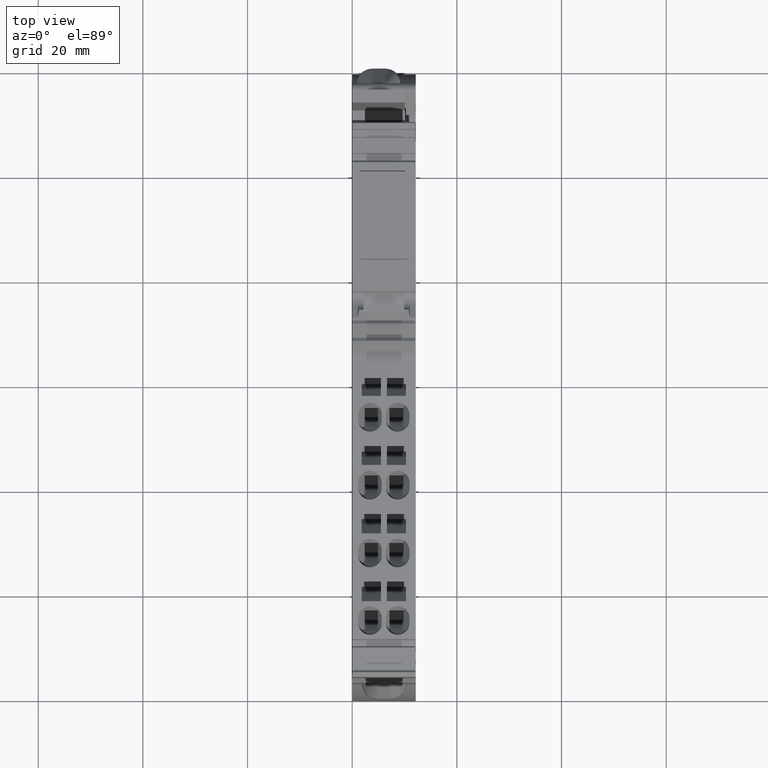
[diagram: clean part render]
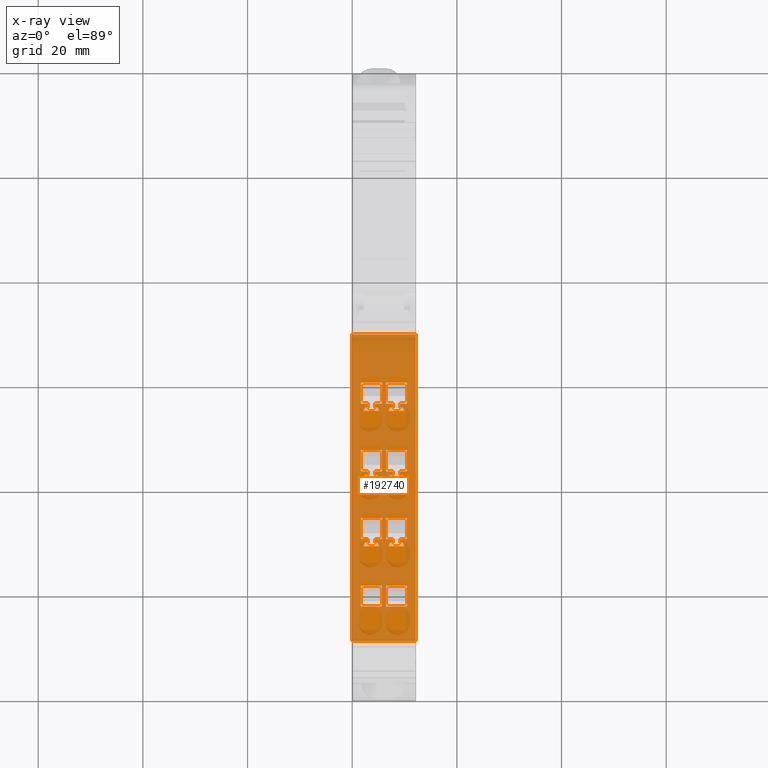
[diagram: x-ray — body ghosted, one internal face saturated and labeled with its STEP entity id]
A machine part, top view, then the same camera in x-ray: the body is ghosted and one INTERNAL B-rep face — a face not visible from any outside direction — is saturated and labeled: STEP entity #192740.
In plain terms, the highlighted planar face has unit normal (0, 0.1305, -0.9914).
Its self-contained STEP definition (entity closure, byte-faithful):
#173920=CARTESIAN_POINT('',(245.956559916687,-18.9076132978659,36.45));
#173930=VERTEX_POINT('',#173920);
#179400=CARTESIAN_POINT('',(187.478620208858,-26.6063801141666,36.45));
#179410=VERTEX_POINT('',#179400);
#179440=CARTESIAN_POINT('',(217.456642799386,-22.6596985673923,36.45));
#179450=DIRECTION('',(0.991444861373811,0.13052619222005,
-1.55470229805303E-45));
#179460=VECTOR('',#179450,1.);
#179470=LINE('',#179440,#179460);
#179480=EDGE_CURVE('',#179410,#173930,#179470,.T.);
#182020=CARTESIAN_POINT('',(245.956559916687,-18.9076132978659,24.3));
#182030=VERTEX_POINT('',#182020);
#182060=CARTESIAN_POINT('',(217.456642799386,-22.6596985673923,24.3));
#182070=DIRECTION('',(0.991444861373811,0.13052619222005,
-1.55470229805303E-45));
#182080=VECTOR('',#182070,1.);
#182090=LINE('',#182060,#182080);
#182100=CARTESIAN_POINT('',(187.478620208858,-26.6063801141666,24.3));
#182110=VERTEX_POINT('',#182100);
#182120=EDGE_CURVE('',#182110,#182030,#182090,.T.);
#185970=CARTESIAN_POINT('',(245.956559916687,-18.9076132978659,24.3));
#185980=DIRECTION('',(0.13052619222005,-0.991444861373811,
1.18091363744997E-44));
#185990=DIRECTION('',(0.991444861373811,0.13052619222005,
-1.55470229805303E-45));
#186000=AXIS2_PLACEMENT_3D('',#185970,#185980,#185990);
#186010=PLANE('',#186000);
#186020=CARTESIAN_POINT('',(217.456642799386,-22.6596985673923,
34.6032718878702));
#186030=DIRECTION('',(0.937065302366578,0.123366987459046,
-0.32663313595824));
#186040=VECTOR('',#186030,1.);
#186050=LINE('',#186020,#186040);
#186060=CARTESIAN_POINT('',(218.49881961482,-22.5224933867127,34.24));
#186070=VERTEX_POINT('',#186060);
#186080=CARTESIAN_POINT('',(219.173002120554,-22.4337355760031,34.005));
#186090=VERTEX_POINT('',#186080);
#186100=EDGE_CURVE('',#186070,#186090,#186050,.T.);
#186110=ORIENTED_EDGE('',*,*,#186100,.F.);
#186120=CARTESIAN_POINT('',(219.173002120554,-22.4337355760031,24.3));
#186130=DIRECTION('',(-1.81498105661143E-19,-2.38946789176702E-20,-1.));
#186140=VECTOR('',#186130,1.);
#186150=LINE('',#186120,#186140);
#186160=CARTESIAN_POINT('',(219.173002120554,-22.4337355760031,33.4));
#186170=VERTEX_POINT('',#186160);
#186180=EDGE_CURVE('',#186090,#186170,#186150,.T.);
#186190=ORIENTED_EDGE('',*,*,#186180,.F.);
#186200=CARTESIAN_POINT('',(217.456642799386,-22.6596985673923,33.4));
#186210=DIRECTION('',(0.991444861373811,0.13052619222005,
-1.55470229805303E-45));
#186220=VECTOR('',#186210,1.);
#186230=LINE('',#186200,#186220);
#186240=CARTESIAN_POINT('',(219.862056299209,-22.3430198724101,33.4));
#186250=VERTEX_POINT('',#186240);
#186260=EDGE_CURVE('',#186170,#186250,#186230,.T.);
#186270=ORIENTED_EDGE('',*,*,#186260,.F.);
#186280=CARTESIAN_POINT('',(219.862056299209,-22.3430198724101,24.3));
#186290=DIRECTION('',(1.81498105661143E-19,2.38946789176702E-20,1.));
#186300=VECTOR('',#186290,1.);
#186310=LINE('',#186280,#186300);
#186320=CARTESIAN_POINT('',(219.862056299209,-22.3430198724101,34.75));
#186330=VERTEX_POINT('',#186320);
#186340=EDGE_CURVE('',#186250,#186330,#186310,.T.);
#186350=ORIENTED_EDGE('',*,*,#186340,.F.);
#186360=CARTESIAN_POINT('',(217.456642799386,-22.6596985673923,34.75));
#186370=DIRECTION('',(0.991444861373811,0.13052619222005,
-1.55470229805303E-45));
#186380=VECTOR('',#186370,1.);
#186390=LINE('',#186360,#186380);
#186400=CARTESIAN_POINT('',(223.888026889554,-21.8129907889778,34.75));
#186410=VERTEX_POINT('',#186400);
#186420=EDGE_CURVE('',#186330,#186410,#186390,.T.);
#186430=ORIENTED_EDGE('',*,*,#186420,.F.);
#186440=CARTESIAN_POINT('',(223.888026889554,-21.8129907889778,24.3));
#186450=DIRECTION('',(-1.81498105661143E-19,-2.38946789176702E-20,-1.));
#186460=VECTOR('',#186450,1.);
#186470=LINE('',#186440,#186460);
#186480=CARTESIAN_POINT('',(223.888026889554,-21.8129907889778,30.75));
#186490=VERTEX_POINT('',#186480);
#186500=EDGE_CURVE('',#186410,#186490,#186470,.T.);
#186510=ORIENTED_EDGE('',*,*,#186500,.F.);
#186520=CARTESIAN_POINT('',(217.456642799386,-22.6596985673923,30.75));
#186530=DIRECTION('',(-0.991444861373811,-0.13052619222005,
1.55470229805303E-45));
#186540=VECTOR('',#186530,1.);
#186550=LINE('',#186520,#186540);
#186560=CARTESIAN_POINT('',(219.862056299209,-22.3430198724101,30.75));
#186570=VERTEX_POINT('',#186560);
#186580=EDGE_CURVE('',#186490,#186570,#186550,.T.);
#186590=ORIENTED_EDGE('',*,*,#186580,.F.);
#186600=CARTESIAN_POINT('',(219.862056299209,-22.3430198724101,24.3));
#186610=DIRECTION('',(1.81498105661143E-19,2.38946789176702E-20,1.));
#186620=VECTOR('',#186610,1.);
#186630=LINE('',#186600,#186620);
#186640=CARTESIAN_POINT('',(219.862056299209,-22.3430198724101,32.1));
#186650=VERTEX_POINT('',#186640);
#186660=EDGE_CURVE('',#186570,#186650,#186630,.T.);
#186670=ORIENTED_EDGE('',*,*,#186660,.F.);
#186680=CARTESIAN_POINT('',(217.456642799386,-22.6596985673923,32.1));
#186690=DIRECTION('',(-0.991444861373811,-0.13052619222005,
1.55470229805303E-45));
#186700=VECTOR('',#186690,1.);
#186710=LINE('',#186680,#186700);
#186720=CARTESIAN_POINT('',(219.173002120554,-22.4337355760031,32.1));
#186730=VERTEX_POINT('',#186720);
#186740=EDGE_CURVE('',#186650,#186730,#186710,.T.);
#186750=ORIENTED_EDGE('',*,*,#186740,.F.);
#186760=CARTESIAN_POINT('',(219.173002120554,-22.4337355760031,24.3));
#186770=DIRECTION('',(-1.81498105661143E-19,-2.38946789176702E-20,-1.));
#186780=VECTOR('',#186770,1.);
#186790=LINE('',#186760,#186780);
#186800=CARTESIAN_POINT('',(219.173002120554,-22.4337355760031,31.495));
#186810=VERTEX_POINT('',#186800);
#186820=EDGE_CURVE('',#186730,#186810,#186790,.T.);
#186830=ORIENTED_EDGE('',*,*,#186820,.F.);
#186840=CARTESIAN_POINT('',(217.456642799386,-22.6596985673923,
30.8967281121298));
#186850=DIRECTION('',(-0.937065302366578,-0.123366987459046,
-0.32663313595824));
#186860=VECTOR('',#186850,1.);
#186870=LINE('',#186840,#186860);
#186880=CARTESIAN_POINT('',(218.49881961482,-22.5224933867127,31.26));
#186890=VERTEX_POINT('',#186880);
#186900=EDGE_CURVE('',#186810,#186890,#186870,.T.);
#186910=ORIENTED_EDGE('',*,*,#186900,.F.);
#186920=CARTESIAN_POINT('',(218.49881961482,-22.5224933867127,24.3));
#186930=DIRECTION('',(1.81498105661143E-19,2.38946789176702E-20,1.));
#186940=VECTOR('',#186930,1.);
#186950=LINE('',#186920,#186940);
#186960=EDGE_CURVE('',#186890,#186070,#186950,.T.);
#186970=ORIENTED_EDGE('',*,*,#186960,.F.);
#186980=EDGE_LOOP('',(#186970,#186910,#186830,#186750,#186670,#186590,
#186510,#186430,#186350,#186270,#186190,#186110));
#186990=FACE_BOUND('',#186980,.T.);
#187000=CARTESIAN_POINT('',(217.456642799386,-22.6596985673923,25.95));
#187010=DIRECTION('',(-0.991444861373811,-0.13052619222005,
1.55470229805303E-45));
#187020=VECTOR('',#187010,1.);
#187030=LINE('',#187000,#187020);
#187040=CARTESIAN_POINT('',(198.110460493835,-25.2066717866991,25.95));
#187050=VERTEX_POINT('',#187040);
#187060=CARTESIAN_POINT('',(194.08448990349,-25.7367008701314,25.95));
#187070=VERTEX_POINT('',#187060);
#187080=EDGE_CURVE('',#187050,#187070,#187030,.T.);
#187090=ORIENTED_EDGE('',*,*,#187080,.F.);
#187100=CARTESIAN_POINT('',(194.08448990349,-25.7367008701314,24.3));
#187110=DIRECTION('',(1.81498105661143E-19,2.38946789176702E-20,1.));
#187120=VECTOR('',#187110,1.);
#187130=LINE('',#187100,#187120);
#187140=CARTESIAN_POINT('',(194.08448990349,-25.7367008701314,29.95));
#187150=VERTEX_POINT('',#187140);
#187160=EDGE_CURVE('',#187070,#187150,#187130,.T.);
#187170=ORIENTED_EDGE('',*,*,#187160,.F.);
#187180=CARTESIAN_POINT('',(217.456642799386,-22.6596985673923,29.95));
#187190=DIRECTION('',(0.991444861373811,0.13052619222005,
-1.55470229805303E-45));
#187200=VECTOR('',#187190,1.);
#187210=LINE('',#187180,#187200);
#187220=CARTESIAN_POINT('',(198.110460493835,-25.2066717866991,29.95));
#187230=VERTEX_POINT('',#187220);
#187240=EDGE_CURVE('',#187150,#187230,#187210,.T.);
#187250=ORIENTED_EDGE('',*,*,#187240,.F.);
#187260=CARTESIAN_POINT('',(198.110460493835,-25.2066717866991,24.3));
#187270=DIRECTION('',(-1.81498105661143E-19,-2.38946789176702E-20,-1.));
#187280=VECTOR('',#187270,1.);
#187290=LINE('',#187260,#187280);
#187300=EDGE_CURVE('',#187230,#187050,#187290,.T.);
#187310=ORIENTED_EDGE('',*,*,#187300,.F.);
#187320=EDGE_LOOP('',(#187310,#187250,#187170,#187090));
#187330=FACE_BOUND('',#187320,.T.);
#187340=CARTESIAN_POINT('',(232.061785318414,-20.7368950771424,24.3));
#187350=DIRECTION('',(-1.81498105661143E-19,-2.38946789176702E-20,-1.));
#187360=VECTOR('',#187350,1.);
#187370=LINE('',#187340,#187360);
#187380=CARTESIAN_POINT('',(232.061785318414,-20.7368950771424,34.005));
#187390=VERTEX_POINT('',#187380);
#187400=CARTESIAN_POINT('',(232.061785318414,-20.7368950771424,33.4));
#187410=VERTEX_POINT('',#187400);
#187420=EDGE_CURVE('',#187390,#187410,#187370,.T.);
#187430=ORIENTED_EDGE('',*,*,#187420,.F.);
#187440=CARTESIAN_POINT('',(217.456642799386,-22.6596985673923,33.4));
#187450=DIRECTION('',(0.991444861373811,0.13052619222005,
-1.55470229805303E-45));
#187460=VECTOR('',#187450,1.);
#187470=LINE('',#187440,#187460);
#187480=CARTESIAN_POINT('',(232.750839497069,-20.6461793735495,33.4));
#187490=VERTEX_POINT('',#187480);
#187500=EDGE_CURVE('',#187410,#187490,#187470,.T.);
#187510=ORIENTED_EDGE('',*,*,#187500,.F.);
#187520=CARTESIAN_POINT('',(232.750839497069,-20.6461793735495,24.3));
#187530=DIRECTION('',(1.81498105661143E-19,2.38946789176702E-20,1.));
#187540=VECTOR('',#187530,1.);
#187550=LINE('',#187520,#187540);
#187560=CARTESIAN_POINT('',(232.750839497069,-20.6461793735495,34.75));
#187570=VERTEX_POINT('',#187560);
#187580=EDGE_CURVE('',#187490,#187570,#187550,.T.);
#187590=ORIENTED_EDGE('',*,*,#187580,.F.);
#187600=CARTESIAN_POINT('',(217.456642799386,-22.6596985673923,34.75));
#187610=DIRECTION('',(0.991444861373811,0.13052619222005,
-1.55470229805303E-45));
#187620=VECTOR('',#187610,1.);
#187630=LINE('',#187600,#187620);
#187640=CARTESIAN_POINT('',(236.776810087414,-20.1161502901171,34.75));
#187650=VERTEX_POINT('',#187640);
#187660=EDGE_CURVE('',#187570,#187650,#187630,.T.);
#187670=ORIENTED_EDGE('',*,*,#187660,.F.);
#187680=CARTESIAN_POINT('',(236.776810087414,-20.1161502901171,24.3));
#187690=DIRECTION('',(-1.81498105661143E-19,-2.38946789176702E-20,-1.));
#187700=VECTOR('',#187690,1.);
#187710=LINE('',#187680,#187700);
#187720=CARTESIAN_POINT('',(236.776810087414,-20.1161502901171,30.75));
#187730=VERTEX_POINT('',#187720);
#187740=EDGE_CURVE('',#187650,#187730,#187710,.T.);
#187750=ORIENTED_EDGE('',*,*,#187740,.F.);
#187760=CARTESIAN_POINT('',(217.456642799386,-22.6596985673923,30.75));
#187770=DIRECTION('',(-0.991444861373811,-0.13052619222005,
1.55470229805303E-45));
#187780=VECTOR('',#187770,1.);
#187790=LINE('',#187760,#187780);
#187800=CARTESIAN_POINT('',(232.750839497069,-20.6461793735495,30.75));
#187810=VERTEX_POINT('',#187800);
#187820=EDGE_CURVE('',#187730,#187810,#187790,.T.);
#187830=ORIENTED_EDGE('',*,*,#187820,.F.);
#187840=CARTESIAN_POINT('',(232.750839497069,-20.6461793735495,24.3));
#187850=DIRECTION('',(1.81498105661143E-19,2.38946789176702E-20,1.));
#187860=VECTOR('',#187850,1.);
#187870=LINE('',#187840,#187860);
#187880=CARTESIAN_POINT('',(232.750839497069,-20.6461793735495,32.1));
#187890=VERTEX_POINT('',#187880);
#187900=EDGE_CURVE('',#187810,#187890,#187870,.T.);
#187910=ORIENTED_EDGE('',*,*,#187900,.F.);
#187920=CARTESIAN_POINT('',(217.456642799386,-22.6596985673923,32.1));
#187930=DIRECTION('',(-0.991444861373811,-0.13052619222005,
1.55470229805303E-45));
#187940=VECTOR('',#187930,1.);
#187950=LINE('',#187920,#187940);
#187960=CARTESIAN_POINT('',(232.061785318414,-20.7368950771424,32.1));
#187970=VERTEX_POINT('',#187960);
#187980=EDGE_CURVE('',#187890,#187970,#187950,.T.);
#187990=ORIENTED_EDGE('',*,*,#187980,.F.);
#188000=CARTESIAN_POINT('',(232.061785318414,-20.7368950771424,24.3));
#188010=DIRECTION('',(-1.81498105661143E-19,-2.38946789176702E-20,-1.));
#188020=VECTOR('',#188010,1.);
#188030=LINE('',#188000,#188020);
#188040=CARTESIAN_POINT('',(232.061785318414,-20.7368950771424,31.495));
#188050=VERTEX_POINT('',#188040);
#188060=EDGE_CURVE('',#187970,#188050,#188030,.T.);
#188070=ORIENTED_EDGE('',*,*,#188060,.F.);
#188080=CARTESIAN_POINT('',(217.456642799386,-22.6596985673923,
26.4040810533063));
#188090=DIRECTION('',(-0.937065302366578,-0.123366987459046,
-0.32663313595824));
#188100=VECTOR('',#188090,1.);
#188110=LINE('',#188080,#188100);
#188120=CARTESIAN_POINT('',(231.38760281268,-20.8256528878521,31.26));
#188130=VERTEX_POINT('',#188120);
#188140=EDGE_CURVE('',#188050,#188130,#188110,.T.);
#188150=ORIENTED_EDGE('',*,*,#188140,.F.);
#188160=CARTESIAN_POINT('',(231.38760281268,-20.8256528878521,24.3));
#188170=DIRECTION('',(1.81498105661143E-19,2.38946789176702E-20,1.));
#188180=VECTOR('',#188170,1.);
#188190=LINE('',#188160,#188180);
#188200=CARTESIAN_POINT('',(231.38760281268,-20.8256528878521,34.24));
#188210=VERTEX_POINT('',#188200);
#188220=EDGE_CURVE('',#188130,#188210,#188190,.T.);
#188230=ORIENTED_EDGE('',*,*,#188220,.F.);
#188240=CARTESIAN_POINT('',(217.456642799386,-22.6596985673923,
39.0959189466937));
#188250=DIRECTION('',(0.937065302366578,0.123366987459046,
-0.32663313595824));
#188260=VECTOR('',#188250,1.);
#188270=LINE('',#188240,#188260);
#188280=EDGE_CURVE('',#188210,#187390,#188270,.T.);
#188290=ORIENTED_EDGE('',*,*,#188280,.F.);
#188300=EDGE_LOOP('',(#188290,#188230,#188150,#188070,#187990,#187910,
#187830,#187750,#187670,#187590,#187510,#187430));
#188310=FACE_BOUND('',#188300,.T.);
#188320=CARTESIAN_POINT('',(198.110460493835,-25.2066717866991,24.3));
#188330=DIRECTION('',(-1.81498105661143E-19,-2.38946789176702E-20,-1.));
#188340=VECTOR('',#188330,1.);
#188350=LINE('',#188320,#188340);
#188360=CARTESIAN_POINT('',(198.110460493835,-25.2066717866991,34.75));
#188370=VERTEX_POINT('',#188360);
#188380=CARTESIAN_POINT('',(198.110460493835,-25.2066717866991,30.75));
#188390=VERTEX_POINT('',#188380);
#188400=EDGE_CURVE('',#188370,#188390,#188350,.T.);
#188410=ORIENTED_EDGE('',*,*,#188400,.F.);
#188420=CARTESIAN_POINT('',(217.456642799386,-22.6596985673923,30.75));
#188430=DIRECTION('',(-0.991444861373811,-0.13052619222005,
1.55470229805303E-45));
#188440=VECTOR('',#188430,1.);
#188450=LINE('',#188420,#188440);
#188460=CARTESIAN_POINT('',(194.08448990349,-25.7367008701314,30.75));
#188470=VERTEX_POINT('',#188460);
#188480=EDGE_CURVE('',#188390,#188470,#188450,.T.);
#188490=ORIENTED_EDGE('',*,*,#188480,.F.);
#188500=CARTESIAN_POINT('',(194.08448990349,-25.7367008701314,24.3));
#188510=DIRECTION('',(1.81498105661143E-19,2.38946789176702E-20,1.));
#188520=VECTOR('',#188510,1.);
#188530=LINE('',#188500,#188520);
#188540=CARTESIAN_POINT('',(194.08448990349,-25.7367008701314,34.75));
#188550=VERTEX_POINT('',#188540);
#188560=EDGE_CURVE('',#188470,#188550,#188530,.T.);
#188570=ORIENTED_EDGE('',*,*,#188560,.F.);
#188580=CARTESIAN_POINT('',(217.456642799386,-22.6596985673923,34.75));
#188590=DIRECTION('',(0.991444861373811,0.13052619222005,
-1.55470229805303E-45));
#188600=VECTOR('',#188590,1.);
#188610=LINE('',#188580,#188600);
#188620=EDGE_CURVE('',#188550,#188370,#188610,.T.);
#188630=ORIENTED_EDGE('',*,*,#188620,.F.);
#188640=EDGE_LOOP('',(#188630,#188570,#188490,#188410));
#188650=FACE_BOUND('',#188640,.T.);
#188660=CARTESIAN_POINT('',(217.456642799386,-22.6596985673923,29.95));
#188670=DIRECTION('',(0.991444861373811,0.13052619222005,
-1.55470229805303E-45));
#188680=VECTOR('',#188670,1.);
#188690=LINE('',#188660,#188680);
#188700=CARTESIAN_POINT('',(232.750839497069,-20.6461793735495,29.95));
#188710=VERTEX_POINT('',#188700);
#188720=CARTESIAN_POINT('',(236.776810087414,-20.1161502901171,29.95));
#188730=VERTEX_POINT('',#188720);
#188740=EDGE_CURVE('',#188710,#188730,#188690,.T.);
#188750=ORIENTED_EDGE('',*,*,#188740,.F.);
#188760=CARTESIAN_POINT('',(236.776810087414,-20.1161502901171,24.3));
#188770=DIRECTION('',(-1.81498105661143E-19,-2.38946789176702E-20,-1.));
#188780=VECTOR('',#188770,1.);
#188790=LINE('',#188760,#188780);
#188800=CARTESIAN_POINT('',(236.776810087414,-20.1161502901171,25.95));
#188810=VERTEX_POINT('',#188800);
#188820=EDGE_CURVE('',#188730,#188810,#188790,.T.);
#188830=ORIENTED_EDGE('',*,*,#188820,.F.);
#188840=CARTESIAN_POINT('',(217.456642799386,-22.6596985673923,25.95));
#188850=DIRECTION('',(-0.991444861373811,-0.13052619222005,
1.55470229805303E-45));
#188860=VECTOR('',#188850,1.);
#188870=LINE('',#188840,#188860);
#188880=CARTESIAN_POINT('',(232.750839497069,-20.6461793735495,25.95));
#188890=VERTEX_POINT('',#188880);
#188900=EDGE_CURVE('',#188810,#188890,#188870,.T.);
#188910=ORIENTED_EDGE('',*,*,#188900,.F.);
#188920=CARTESIAN_POINT('',(232.750839497069,-20.6461793735495,24.3));
#188930=DIRECTION('',(1.81498105661143E-19,2.38946789176702E-20,1.));
#188940=VECTOR('',#188930,1.);
#188950=LINE('',#188920,#188940);
#188960=CARTESIAN_POINT('',(232.750839497069,-20.6461793735495,27.3));
#188970=VERTEX_POINT('',#188960);
#188980=EDGE_CURVE('',#188890,#188970,#188950,.T.);
#188990=ORIENTED_EDGE('',*,*,#188980,.F.);
#189000=CARTESIAN_POINT('',(217.456642799386,-22.6596985673923,27.3));
#189010=DIRECTION('',(-0.991444861373811,-0.13052619222005,
1.55470229805303E-45));
#189020=VECTOR('',#189010,1.);
#189030=LINE('',#189000,#189020);
#189040=CARTESIAN_POINT('',(232.061785318414,-20.7368950771424,27.3));
#189050=VERTEX_POINT('',#189040);
#189060=EDGE_CURVE('',#188970,#189050,#189030,.T.);
#189070=ORIENTED_EDGE('',*,*,#189060,.F.);
#189080=CARTESIAN_POINT('',(232.061785318414,-20.7368950771424,24.3));
#189090=DIRECTION('',(-1.81498105661143E-19,-2.38946789176702E-20,-1.));
#189100=VECTOR('',#189090,1.);
#189110=LINE('',#189080,#189100);
#189120=CARTESIAN_POINT('',(232.061785318414,-20.7368950771424,26.695));
#189130=VERTEX_POINT('',#189120);
#189140=EDGE_CURVE('',#189050,#189130,#189110,.T.);
#189150=ORIENTED_EDGE('',*,*,#189140,.F.);
#189160=CARTESIAN_POINT('',(217.456642799386,-22.6596985673923,
21.6040810533063));
#189170=DIRECTION('',(-0.937065302366578,-0.123366987459046,
-0.32663313595824));
#189180=VECTOR('',#189170,1.);
#189190=LINE('',#189160,#189180);
#189200=CARTESIAN_POINT('',(231.38760281268,-20.825652887852,26.46));
#189210=VERTEX_POINT('',#189200);
#189220=EDGE_CURVE('',#189130,#189210,#189190,.T.);
#189230=ORIENTED_EDGE('',*,*,#189220,.F.);
#189240=CARTESIAN_POINT('',(231.38760281268,-20.825652887852,24.3));
#189250=DIRECTION('',(1.81498105661143E-19,2.38946789176702E-20,1.));
#189260=VECTOR('',#189250,1.);
#189270=LINE('',#189240,#189260);
#189280=CARTESIAN_POINT('',(231.38760281268,-20.825652887852,29.44));
#189290=VERTEX_POINT('',#189280);
#189300=EDGE_CURVE('',#189210,#189290,#189270,.T.);
#189310=ORIENTED_EDGE('',*,*,#189300,.F.);
#189320=CARTESIAN_POINT('',(217.456642799386,-22.6596985673923,
34.2959189466937));
#189330=DIRECTION('',(0.937065302366578,0.123366987459046,
-0.32663313595824));
#189340=VECTOR('',#189330,1.);
#189350=LINE('',#189320,#189340);
#189360=CARTESIAN_POINT('',(232.061785318414,-20.7368950771424,29.205));
#189370=VERTEX_POINT('',#189360);
#189380=EDGE_CURVE('',#189290,#189370,#189350,.T.);
#189390=ORIENTED_EDGE('',*,*,#189380,.F.);
#189400=CARTESIAN_POINT('',(232.061785318414,-20.7368950771424,24.3));
#189410=DIRECTION('',(-1.81498105661143E-19,-2.38946789176702E-20,-1.));
#189420=VECTOR('',#189410,1.);
#189430=LINE('',#189400,#189420);
#189440=CARTESIAN_POINT('',(232.061785318414,-20.7368950771424,28.6));
#189450=VERTEX_POINT('',#189440);
#189460=EDGE_CURVE('',#189370,#189450,#189430,.T.);
#189470=ORIENTED_EDGE('',*,*,#189460,.F.);
#189480=CARTESIAN_POINT('',(217.456642799386,-22.6596985673923,28.6));
#189490=DIRECTION('',(0.991444861373811,0.13052619222005,
-1.55470229805303E-45));
#189500=VECTOR('',#189490,1.);
#189510=LINE('',#189480,#189500);
#189520=CARTESIAN_POINT('',(232.750839497069,-20.6461793735495,28.6));
#189530=VERTEX_POINT('',#189520);
#189540=EDGE_CURVE('',#189450,#189530,#189510,.T.);
#189550=ORIENTED_EDGE('',*,*,#189540,.F.);
#189560=CARTESIAN_POINT('',(232.750839497069,-20.6461793735495,24.3));
#189570=DIRECTION('',(1.81498105661143E-19,2.38946789176702E-20,1.));
#189580=VECTOR('',#189570,1.);
#189590=LINE('',#189560,#189580);
#189600=EDGE_CURVE('',#189530,#188710,#189590,.T.);
#189610=ORIENTED_EDGE('',*,*,#189600,.F.);
#189620=EDGE_LOOP('',(#189610,#189550,#189470,#189390,#189310,#189230,
#189150,#189070,#188990,#188910,#188830,#188750));
#189630=FACE_BOUND('',#189620,.T.);
#189640=CARTESIAN_POINT('',(219.862056299209,-22.3430198724101,24.3));
#189650=DIRECTION('',(1.81498105661143E-19,2.38946789176702E-20,1.));
#189660=VECTOR('',#189650,1.);
#189670=LINE('',#189640,#189660);
#189680=CARTESIAN_POINT('',(219.862056299209,-22.3430198724101,28.6));
#189690=VERTEX_POINT('',#189680);
#189700=CARTESIAN_POINT('',(219.862056299209,-22.3430198724101,29.95));
#189710=VERTEX_POINT('',#189700);
#189720=EDGE_CURVE('',#189690,#189710,#189670,.T.);
#189730=ORIENTED_EDGE('',*,*,#189720,.F.);
#189740=CARTESIAN_POINT('',(217.456642799386,-22.6596985673923,29.95));
#189750=DIRECTION('',(0.991444861373811,0.13052619222005,
-1.55470229805303E-45));
#189760=VECTOR('',#189750,1.);
#189770=LINE('',#189740,#189760);
#189780=CARTESIAN_POINT('',(223.888026889554,-21.8129907889778,29.95));
#189790=VERTEX_POINT('',#189780);
#189800=EDGE_CURVE('',#189710,#189790,#189770,.T.);
#189810=ORIENTED_EDGE('',*,*,#189800,.F.);
#189820=CARTESIAN_POINT('',(223.888026889554,-21.8129907889778,24.3));
#189830=DIRECTION('',(-1.81498105661143E-19,-2.38946789176702E-20,-1.));
#189840=VECTOR('',#189830,1.);
#189850=LINE('',#189820,#189840);
#189860=CARTESIAN_POINT('',(223.888026889554,-21.8129907889778,25.95));
#189870=VERTEX_POINT('',#189860);
#189880=EDGE_CURVE('',#189790,#189870,#189850,.T.);
#189890=ORIENTED_EDGE('',*,*,#189880,.F.);
#189900=CARTESIAN_POINT('',(217.456642799386,-22.6596985673923,25.95));
#189910=DIRECTION('',(-0.991444861373811,-0.13052619222005,
1.55470229805303E-45));
#189920=VECTOR('',#189910,1.);
#189930=LINE('',#189900,#189920);
#189940=CARTESIAN_POINT('',(219.862056299209,-22.3430198724101,25.95));
#189950=VERTEX_POINT('',#189940);
#189960=EDGE_CURVE('',#189870,#189950,#189930,.T.);
#189970=ORIENTED_EDGE('',*,*,#189960,.F.);
#189980=CARTESIAN_POINT('',(219.862056299209,-22.3430198724101,24.3));
#189990=DIRECTION('',(1.81498105661143E-19,2.38946789176702E-20,1.));
#190000=VECTOR('',#189990,1.);
#190010=LINE('',#189980,#190000);
#190020=CARTESIAN_POINT('',(219.862056299209,-22.3430198724101,27.3));
#190030=VERTEX_POINT('',#190020);
#190040=EDGE_CURVE('',#189950,#190030,#190010,.T.);
#190050=ORIENTED_EDGE('',*,*,#190040,.F.);
#190060=CARTESIAN_POINT('',(217.456642799386,-22.6596985673923,27.3));
#190070=DIRECTION('',(-0.991444861373811,-0.13052619222005,
1.55470229805303E-45));
#190080=VECTOR('',#190070,1.);
#190090=LINE('',#190060,#190080);
#190100=CARTESIAN_POINT('',(219.173002120554,-22.4337355760031,27.3));
#190110=VERTEX_POINT('',#190100);
#190120=EDGE_CURVE('',#190030,#190110,#190090,.T.);
#190130=ORIENTED_EDGE('',*,*,#190120,.F.);
#190140=CARTESIAN_POINT('',(219.173002120554,-22.4337355760031,24.3));
#190150=DIRECTION('',(-1.81498105661143E-19,-2.38946789176702E-20,-1.));
#190160=VECTOR('',#190150,1.);
#190170=LINE('',#190140,#190160);
#190180=CARTESIAN_POINT('',(219.173002120554,-22.4337355760031,26.695));
#190190=VERTEX_POINT('',#190180);
#190200=EDGE_CURVE('',#190110,#190190,#190170,.T.);
#190210=ORIENTED_EDGE('',*,*,#190200,.F.);
#190220=CARTESIAN_POINT('',(217.456642799386,-22.6596985673923,
26.0967281121298));
#190230=DIRECTION('',(-0.937065302366578,-0.123366987459046,
-0.32663313595824));
#190240=VECTOR('',#190230,1.);
#190250=LINE('',#190220,#190240);
#190260=CARTESIAN_POINT('',(218.49881961482,-22.5224933867127,26.46));
#190270=VERTEX_POINT('',#190260);
#190280=EDGE_CURVE('',#190190,#190270,#190250,.T.);
#190290=ORIENTED_EDGE('',*,*,#190280,.F.);
#190300=CARTESIAN_POINT('',(218.49881961482,-22.5224933867127,24.3));
#190310=DIRECTION('',(1.81498105661143E-19,2.38946789176702E-20,1.));
#190320=VECTOR('',#190310,1.);
#190330=LINE('',#190300,#190320);
#190340=CARTESIAN_POINT('',(218.49881961482,-22.5224933867127,29.44));
#190350=VERTEX_POINT('',#190340);
#190360=EDGE_CURVE('',#190270,#190350,#190330,.T.);
#190370=ORIENTED_EDGE('',*,*,#190360,.F.);
#190380=CARTESIAN_POINT('',(217.456642799386,-22.6596985673923,
29.8032718878702));
#190390=DIRECTION('',(0.937065302366578,0.123366987459046,
-0.32663313595824));
#190400=VECTOR('',#190390,1.);
#190410=LINE('',#190380,#190400);
#190420=CARTESIAN_POINT('',(219.173002120554,-22.4337355760031,29.205));
#190430=VERTEX_POINT('',#190420);
#190440=EDGE_CURVE('',#190350,#190430,#190410,.T.);
#190450=ORIENTED_EDGE('',*,*,#190440,.F.);
#190460=CARTESIAN_POINT('',(219.173002120554,-22.4337355760031,24.3));
#190470=DIRECTION('',(-1.81498105661143E-19,-2.38946789176702E-20,-1.));
#190480=VECTOR('',#190470,1.);
#190490=LINE('',#190460,#190480);
#190500=CARTESIAN_POINT('',(219.173002120554,-22.4337355760031,28.6));
#190510=VERTEX_POINT('',#190500);
#190520=EDGE_CURVE('',#190430,#190510,#190490,.T.);
#190530=ORIENTED_EDGE('',*,*,#190520,.F.);
#190540=CARTESIAN_POINT('',(217.456642799386,-22.6596985673923,28.6));
#190550=DIRECTION('',(0.991444861373811,0.13052619222005,
-1.55470229805303E-45));
#190560=VECTOR('',#190550,1.);
#190570=LINE('',#190540,#190560);
#190580=EDGE_CURVE('',#190510,#189690,#190570,.T.);
#190590=ORIENTED_EDGE('',*,*,#190580,.F.);
#190600=EDGE_LOOP('',(#190590,#190530,#190450,#190370,#190290,#190210,
#190130,#190050,#189970,#189890,#189810,#189730));
#190610=FACE_BOUND('',#190600,.T.);
#190620=CARTESIAN_POINT('',(217.456642799386,-22.6596985673923,
30.5893751709533));
#190630=DIRECTION('',(-0.937065302366578,-0.123366987459046,
-0.32663313595824));
#190640=VECTOR('',#190630,1.);
#190650=LINE('',#190620,#190640);
#190660=CARTESIAN_POINT('',(206.284218922695,-24.1305760748637,26.695));
#190670=VERTEX_POINT('',#190660);
#190680=CARTESIAN_POINT('',(205.610036416961,-24.2193338855733,26.46));
#190690=VERTEX_POINT('',#190680);
#190700=EDGE_CURVE('',#190670,#190690,#190650,.T.);
#190710=ORIENTED_EDGE('',*,*,#190700,.F.);
#190720=CARTESIAN_POINT('',(205.610036416961,-24.2193338855733,24.3));
#190730=DIRECTION('',(1.81498105661143E-19,2.38946789176702E-20,1.));
#190740=VECTOR('',#190730,1.);
#190750=LINE('',#190720,#190740);
#190760=CARTESIAN_POINT('',(205.610036416961,-24.2193338855733,29.44));
#190770=VERTEX_POINT('',#190760);
#190780=EDGE_CURVE('',#190690,#190770,#190750,.T.);
#190790=ORIENTED_EDGE('',*,*,#190780,.F.);
#190800=CARTESIAN_POINT('',(217.456642799386,-22.6596985673923,
25.3106248290467));
#190810=DIRECTION('',(0.937065302366578,0.123366987459046,
-0.32663313595824));
#190820=VECTOR('',#190810,1.);
#190830=LINE('',#190800,#190820);
#190840=CARTESIAN_POINT('',(206.284218922695,-24.1305760748637,29.205));
#190850=VERTEX_POINT('',#190840);
#190860=EDGE_CURVE('',#190770,#190850,#190830,.T.);
#190870=ORIENTED_EDGE('',*,*,#190860,.F.);
#190880=CARTESIAN_POINT('',(206.284218922695,-24.1305760748637,24.3));
#190890=DIRECTION('',(-1.81498105661143E-19,-2.38946789176702E-20,-1.));
#190900=VECTOR('',#190890,1.);
#190910=LINE('',#190880,#190900);
#190920=CARTESIAN_POINT('',(206.284218922695,-24.1305760748637,28.6));
#190930=VERTEX_POINT('',#190920);
#190940=EDGE_CURVE('',#190850,#190930,#190910,.T.);
#190950=ORIENTED_EDGE('',*,*,#190940,.F.);
#190960=CARTESIAN_POINT('',(217.456642799386,-22.6596985673923,28.6));
#190970=DIRECTION('',(0.991444861373811,0.13052619222005,
-1.55470229805303E-45));
#190980=VECTOR('',#190970,1.);
#190990=LINE('',#190960,#190980);
#191000=CARTESIAN_POINT('',(206.97327310135,-24.0398603712708,28.6));
#191010=VERTEX_POINT('',#191000);
#191020=EDGE_CURVE('',#190930,#191010,#190990,.T.);
#191030=ORIENTED_EDGE('',*,*,#191020,.F.);
#191040=CARTESIAN_POINT('',(206.97327310135,-24.0398603712708,24.3));
#191050=DIRECTION('',(1.81498105661143E-19,2.38946789176702E-20,1.));
#191060=VECTOR('',#191050,1.);
#191070=LINE('',#191040,#191060);
#191080=CARTESIAN_POINT('',(206.97327310135,-24.0398603712708,29.95));
#191090=VERTEX_POINT('',#191080);
#191100=EDGE_CURVE('',#191010,#191090,#191070,.T.);
#191110=ORIENTED_EDGE('',*,*,#191100,.F.);
#191120=CARTESIAN_POINT('',(217.456642799386,-22.6596985673923,29.95));
#191130=DIRECTION('',(0.991444861373811,0.13052619222005,
-1.55470229805303E-45));
#191140=VECTOR('',#191130,1.);
#191150=LINE('',#191120,#191140);
#191160=CARTESIAN_POINT('',(210.999243691695,-23.5098312878385,29.95));
#191170=VERTEX_POINT('',#191160);
#191180=EDGE_CURVE('',#191090,#191170,#191150,.T.);
#191190=ORIENTED_EDGE('',*,*,#191180,.F.);
#191200=CARTESIAN_POINT('',(210.999243691695,-23.5098312878385,24.3));
#191210=DIRECTION('',(-1.81498105661143E-19,-2.38946789176702E-20,-1.));
#191220=VECTOR('',#191210,1.);
#191230=LINE('',#191200,#191220);
#191240=CARTESIAN_POINT('',(210.999243691695,-23.5098312878385,25.95));
#191250=VERTEX_POINT('',#191240);
#191260=EDGE_CURVE('',#191170,#191250,#191230,.T.);
#191270=ORIENTED_EDGE('',*,*,#191260,.F.);
#191280=CARTESIAN_POINT('',(217.456642799386,-22.6596985673923,25.95));
#191290=DIRECTION('',(-0.991444861373811,-0.13052619222005,
1.55470229805303E-45));
#191300=VECTOR('',#191290,1.);
#191310=LINE('',#191280,#191300);
#191320=CARTESIAN_POINT('',(206.97327310135,-24.0398603712708,25.95));
#191330=VERTEX_POINT('',#191320);
#191340=EDGE_CURVE('',#191250,#191330,#191310,.T.);
#191350=ORIENTED_EDGE('',*,*,#191340,.F.);
#191360=CARTESIAN_POINT('',(206.97327310135,-24.0398603712708,24.3));
#191370=DIRECTION('',(1.81498105661143E-19,2.38946789176702E-20,1.));
#191380=VECTOR('',#191370,1.);
#191390=LINE('',#191360,#191380);
#191400=CARTESIAN_POINT('',(206.97327310135,-24.0398603712708,27.3));
#191410=VERTEX_POINT('',#191400);
#191420=EDGE_CURVE('',#191330,#191410,#191390,.T.);
#191430=ORIENTED_EDGE('',*,*,#191420,.F.);
#191440=CARTESIAN_POINT('',(217.456642799386,-22.6596985673923,27.3));
#191450=DIRECTION('',(-0.991444861373811,-0.13052619222005,
1.55470229805303E-45));
#191460=VECTOR('',#191450,1.);
#191470=LINE('',#191440,#191460);
#191480=CARTESIAN_POINT('',(206.284218922695,-24.1305760748637,27.3));
#191490=VERTEX_POINT('',#191480);
#191500=EDGE_CURVE('',#191410,#191490,#191470,.T.);
#191510=ORIENTED_EDGE('',*,*,#191500,.F.);
#191520=CARTESIAN_POINT('',(206.284218922695,-24.1305760748637,24.3));
#191530=DIRECTION('',(-1.81498105661143E-19,-2.38946789176702E-20,-1.));
#191540=VECTOR('',#191530,1.);
#191550=LINE('',#191520,#191540);
#191560=EDGE_CURVE('',#191490,#190670,#191550,.T.);
#191570=ORIENTED_EDGE('',*,*,#191560,.F.);
#191580=EDGE_LOOP('',(#191570,#191510,#191430,#191350,#191270,#191190,
#191110,#191030,#190950,#190870,#190790,#190710));
#191590=FACE_BOUND('',#191580,.T.);
#191600=CARTESIAN_POINT('',(217.456642799386,-22.6596985673923,34.75));
#191610=DIRECTION('',(0.991444861373811,0.13052619222005,
-1.55470229805303E-45));
#191620=VECTOR('',#191610,1.);
#191630=LINE('',#191600,#191620);
#191640=CARTESIAN_POINT('',(206.97327310135,-24.0398603712708,34.75));
#191650=VERTEX_POINT('',#191640);
#191660=CARTESIAN_POINT('',(210.999243691695,-23.5098312878385,34.75));
#191670=VERTEX_POINT('',#191660);
#191680=EDGE_CURVE('',#191650,#191670,#191630,.T.);
#191690=ORIENTED_EDGE('',*,*,#191680,.F.);
#191700=CARTESIAN_POINT('',(210.999243691695,-23.5098312878385,24.3));
#191710=DIRECTION('',(-1.81498105661143E-19,-2.38946789176702E-20,-1.));
#191720=VECTOR('',#191710,1.);
#191730=LINE('',#191700,#191720);
#191740=CARTESIAN_POINT('',(210.999243691695,-23.5098312878385,30.75));
#191750=VERTEX_POINT('',#191740);
#191760=EDGE_CURVE('',#191670,#191750,#191730,.T.);
#191770=ORIENTED_EDGE('',*,*,#191760,.F.);
#191780=CARTESIAN_POINT('',(217.456642799386,-22.6596985673923,30.75));
#191790=DIRECTION('',(-0.991444861373811,-0.13052619222005,
1.55470229805303E-45));
#191800=VECTOR('',#191790,1.);
#191810=LINE('',#191780,#191800);
#191820=CARTESIAN_POINT('',(206.97327310135,-24.0398603712708,30.75));
#191830=VERTEX_POINT('',#191820);
#191840=EDGE_CURVE('',#191750,#191830,#191810,.T.);
#191850=ORIENTED_EDGE('',*,*,#191840,.F.);
#191860=CARTESIAN_POINT('',(206.97327310135,-24.0398603712708,24.3));
#191870=DIRECTION('',(1.81498105661143E-19,2.38946789176702E-20,1.));
#191880=VECTOR('',#191870,1.);
#191890=LINE('',#191860,#191880);
#191900=CARTESIAN_POINT('',(206.97327310135,-24.0398603712708,32.1));
#191910=VERTEX_POINT('',#191900);
#191920=EDGE_CURVE('',#191830,#191910,#191890,.T.);
#191930=ORIENTED_EDGE('',*,*,#191920,.F.);
#191940=CARTESIAN_POINT('',(217.456642799386,-22.6596985673923,32.1));
#191950=DIRECTION('',(-0.991444861373811,-0.13052619222005,
1.55470229805303E-45));
#191960=VECTOR('',#191950,1.);
#191970=LINE('',#191940,#191960);
#191980=CARTESIAN_POINT('',(206.284218922695,-24.1305760748637,32.1));
#191990=VERTEX_POINT('',#191980);
#192000=EDGE_CURVE('',#191910,#191990,#191970,.T.);
#192010=ORIENTED_EDGE('',*,*,#192000,.F.);
#192020=CARTESIAN_POINT('',(206.284218922695,-24.1305760748637,24.3));
#192030=DIRECTION('',(-1.81498105661143E-19,-2.38946789176702E-20,-1.));
#192040=VECTOR('',#192030,1.);
#192050=LINE('',#192020,#192040);
#192060=CARTESIAN_POINT('',(206.284218922695,-24.1305760748637,31.495));
#192070=VERTEX_POINT('',#192060);
#192080=EDGE_CURVE('',#191990,#192070,#192050,.T.);
#192090=ORIENTED_EDGE('',*,*,#192080,.F.);
#192100=CARTESIAN_POINT('',(217.456642799386,-22.6596985673923,
35.3893751709533));
#192110=DIRECTION('',(-0.937065302366578,-0.123366987459046,
-0.32663313595824));
#192120=VECTOR('',#192110,1.);
#192130=LINE('',#192100,#192120);
#192140=CARTESIAN_POINT('',(205.610036416961,-24.2193338855734,31.26));
#192150=VERTEX_POINT('',#192140);
#192160=EDGE_CURVE('',#192070,#192150,#192130,.T.);
#192170=ORIENTED_EDGE('',*,*,#192160,.F.);
#192180=CARTESIAN_POINT('',(205.610036416961,-24.2193338855733,24.3));
#192190=DIRECTION('',(1.81498105661143E-19,2.38946789176702E-20,1.));
#192200=VECTOR('',#192190,1.);
#192210=LINE('',#192180,#192200);
#192220=CARTESIAN_POINT('',(205.610036416961,-24.2193338855733,34.24));
#192230=VERTEX_POINT('',#192220);
#192240=EDGE_CURVE('',#192150,#192230,#192210,.T.);
#192250=ORIENTED_EDGE('',*,*,#192240,.F.);
#192260=CARTESIAN_POINT('',(217.456642799386,-22.6596985673923,
30.1106248290467));
#192270=DIRECTION('',(0.937065302366578,0.123366987459046,
-0.32663313595824));
#192280=VECTOR('',#192270,1.);
#192290=LINE('',#192260,#192280);
#192300=CARTESIAN_POINT('',(206.284218922695,-24.1305760748637,34.005));
#192310=VERTEX_POINT('',#192300);
#192320=EDGE_CURVE('',#192230,#192310,#192290,.T.);
#192330=ORIENTED_EDGE('',*,*,#192320,.F.);
#192340=CARTESIAN_POINT('',(206.284218922695,-24.1305760748637,24.3));
#192350=DIRECTION('',(-1.81498105661143E-19,-2.38946789176702E-20,-1.));
#192360=VECTOR('',#192350,1.);
#192370=LINE('',#192340,#192360);
#192380=CARTESIAN_POINT('',(206.284218922695,-24.1305760748637,33.4));
#192390=VERTEX_POINT('',#192380);
#192400=EDGE_CURVE('',#192310,#192390,#192370,.T.);
#192410=ORIENTED_EDGE('',*,*,#192400,.F.);
#192420=CARTESIAN_POINT('',(217.456642799386,-22.6596985673923,33.4));
#192430=DIRECTION('',(0.991444861373811,0.13052619222005,
-1.55470229805303E-45));
#192440=VECTOR('',#192430,1.);
#192450=LINE('',#192420,#192440);
#192460=CARTESIAN_POINT('',(206.97327310135,-24.0398603712708,33.4));
#192470=VERTEX_POINT('',#192460);
#192480=EDGE_CURVE('',#192390,#192470,#192450,.T.);
#192490=ORIENTED_EDGE('',*,*,#192480,.F.);
#192500=CARTESIAN_POINT('',(206.97327310135,-24.0398603712708,24.3));
#192510=DIRECTION('',(1.81498105661143E-19,2.38946789176702E-20,1.));
#192520=VECTOR('',#192510,1.);
#192530=LINE('',#192500,#192520);
#192540=EDGE_CURVE('',#192470,#191650,#192530,.T.);
#192550=ORIENTED_EDGE('',*,*,#192540,.F.);
#192560=EDGE_LOOP('',(#192550,#192490,#192410,#192330,#192250,#192170,
#192090,#192010,#191930,#191850,#191770,#191690));
#192570=FACE_BOUND('',#192560,.T.);
#192580=ORIENTED_EDGE('',*,*,#182120,.F.);
#192590=CARTESIAN_POINT('',(245.956559916687,-18.9076132978659,24.3));
#192600=DIRECTION('',(0.,1.19110369467609E-44,1.));
#192610=VECTOR('',#192600,1.);
#192620=LINE('',#192590,#192610);
#192630=EDGE_CURVE('',#182030,#173930,#192620,.T.);
#192640=ORIENTED_EDGE('',*,*,#192630,.F.);
#192650=ORIENTED_EDGE('',*,*,#179480,.T.);
#192660=CARTESIAN_POINT('',(187.478620208858,-26.6063801141666,24.3));
#192670=DIRECTION('',(0.,1.19110369467609E-44,1.));
#192680=VECTOR('',#192670,1.);
#192690=LINE('',#192660,#192680);
#192700=EDGE_CURVE('',#182110,#179410,#192690,.T.);
#192710=ORIENTED_EDGE('',*,*,#192700,.T.);
#192720=EDGE_LOOP('',(#192710,#192650,#192640,#192580));
#192730=FACE_OUTER_BOUND('',#192720,.T.);
#192740=ADVANCED_FACE('',(#186990,#187330,#188310,#188650,#189630,
#190610,#191590,#192570,#192730),#186010,.F.);